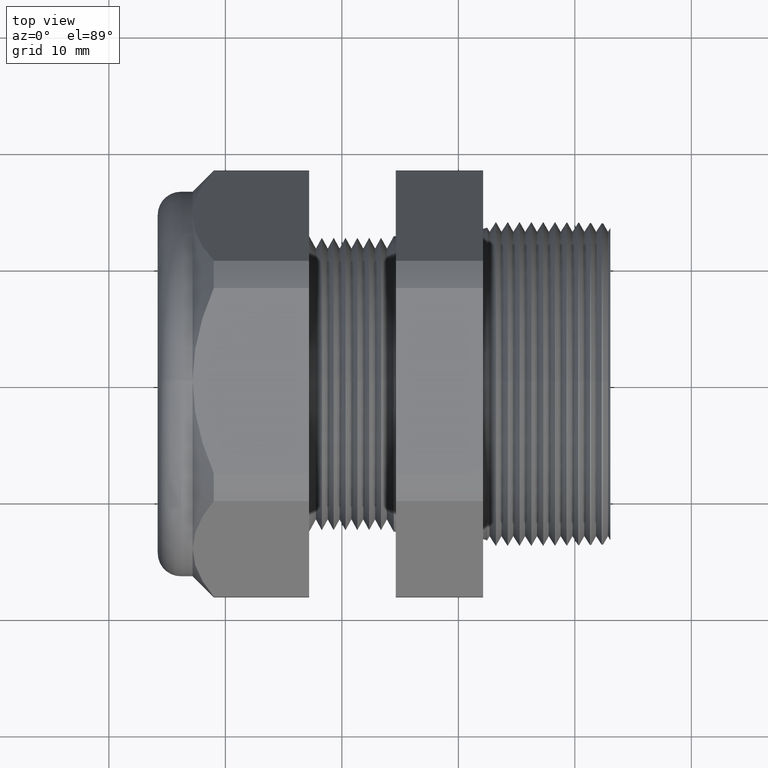
[diagram: clean part render]
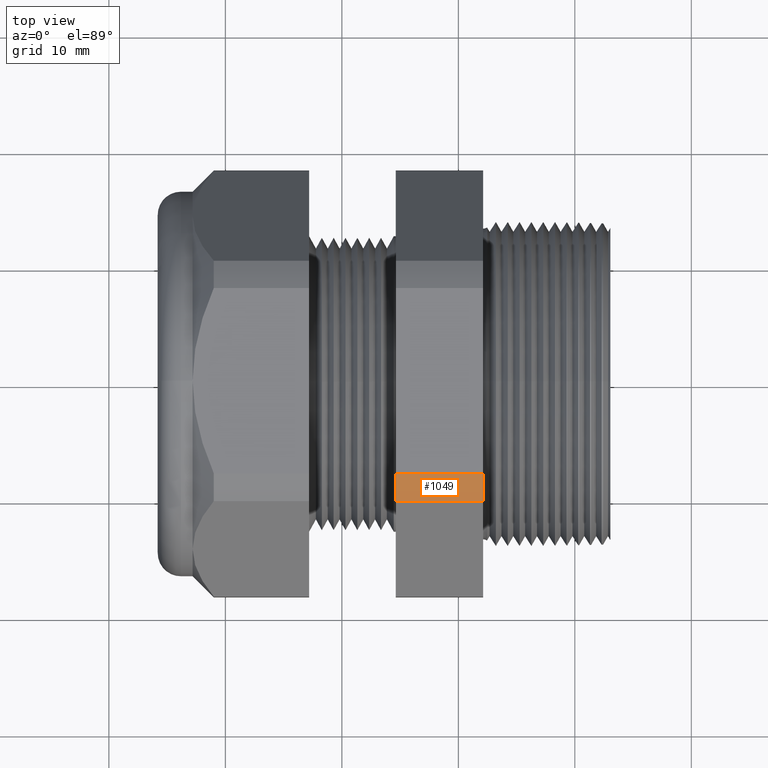
[diagram: same view with one face highlighted and labeled with its STEP entity id]
A machine part, top view. The second image highlights one B-rep face of the part: STEP entity #1049.
In plain terms, the highlighted cylindrical surface (partial cylindrical patch) has radius 18.3261 mm, axis along (-1, 0, 0).
Its self-contained STEP definition (entity closure, byte-faithful):
#297 = DIRECTION ( 'NONE',  ( 0.0000000000000000000, 0.0000000000000000000, -1.000000000000000000 ) ) ;
#298 = DIRECTION ( 'NONE',  ( 1.000000000000000000, 0.0000000000000000000, 0.0000000000000000000 ) ) ;
#299 = CARTESIAN_POINT ( 'NONE',  ( -0.3100000000000000000, 0.0000000000000000000, 0.0000000000000000000 ) ) ;
#300 = AXIS2_PLACEMENT_3D ( 'NONE', #299, #298, #297 ) ;
#301 = CIRCLE ( 'NONE', #300, 0.7215000000000000300 ) ;
#302 = CARTESIAN_POINT ( 'NONE',  ( -0.3100000000000000000, -0.3131489262315937400, 0.6500000000000000200 ) ) ;
#313 = CARTESIAN_POINT ( 'NONE',  ( -0.3100000000000000000, -0.4063420493440885700, 0.5961949252843791200 ) ) ;
#918 = EDGE_CURVE ( 'NONE', #1051, #1035, #1417, .T. ) ;
#984 = EDGE_CURVE ( 'NONE', #3714, #1051, #2044, .T. ) ;
#1035 = VERTEX_POINT ( 'NONE', #2093 ) ;
#1037 = EDGE_CURVE ( 'NONE', #3686, #1035, #2092, .T. ) ;
#1038 = ORIENTED_EDGE ( 'NONE', *, *, #1037, .T. ) ;
#1039 = ORIENTED_EDGE ( 'NONE', *, *, #918, .F. ) ;
#1043 = EDGE_LOOP ( 'NONE', ( #1044, #1045, #1038, #1039 ) ) ;
#1044 = ORIENTED_EDGE ( 'NONE', *, *, #984, .F. ) ;
#1045 = ORIENTED_EDGE ( 'NONE', *, *, #3688, .F. ) ;
#1049 = ADVANCED_FACE ( 'NONE', ( #2148 ), #2147, .T. ) ;
#1051 = VERTEX_POINT ( 'NONE', #2138 ) ;
#1413 = DIRECTION ( 'NONE',  ( 0.0000000000000000000, 0.0000000000000000000, 1.000000000000000000 ) ) ;
#1414 = DIRECTION ( 'NONE',  ( -1.000000000000000000, 0.0000000000000000000, 0.0000000000000000000 ) ) ;
#1415 = CARTESIAN_POINT ( 'NONE',  ( -0.6052755905511810800, 0.0000000000000000000, 0.0000000000000000000 ) ) ;
#1416 = AXIS2_PLACEMENT_3D ( 'NONE', #1415, #1414, #1413 ) ;
#1417 = CIRCLE ( 'NONE', #1416, 0.7215000000000000300 ) ;
#2037 = DIRECTION ( 'NONE',  ( -1.000000000000000000, 0.0000000000000000000, 0.0000000000000000000 ) ) ;
#2038 = VECTOR ( 'NONE', #2037, 39.37007874015748100 ) ;
#2039 = CARTESIAN_POINT ( 'NONE',  ( 0.1200000000000000900, -0.4063420493440885700, 0.5961949252843791200 ) ) ;
#2044 = LINE ( 'NONE', #2039, #2038 ) ;
#2092 = LINE ( 'NONE', #2156, #2155 ) ;
#2093 = CARTESIAN_POINT ( 'NONE',  ( -0.6052755905511810800, -0.3131489262315937400, 0.6500000000000000200 ) ) ;
#2138 = CARTESIAN_POINT ( 'NONE',  ( -0.6052755905511810800, -0.4063420493440885700, 0.5961949252843791200 ) ) ;
#2143 = DIRECTION ( 'NONE',  ( 0.0000000000000000000, 0.0000000000000000000, 1.000000000000000000 ) ) ;
#2144 = DIRECTION ( 'NONE',  ( -1.000000000000000000, 0.0000000000000000000, 0.0000000000000000000 ) ) ;
#2145 = CARTESIAN_POINT ( 'NONE',  ( 0.1200000000000000900, 0.0000000000000000000, 0.0000000000000000000 ) ) ;
#2146 = AXIS2_PLACEMENT_3D ( 'NONE', #2145, #2144, #2143 ) ;
#2147 = CYLINDRICAL_SURFACE ( 'NONE', #2146, 0.7215000000000000300 ) ;
#2148 = FACE_OUTER_BOUND ( 'NONE', #1043, .T. ) ;
#2154 = DIRECTION ( 'NONE',  ( -1.000000000000000000, 0.0000000000000000000, 0.0000000000000000000 ) ) ;
#2155 = VECTOR ( 'NONE', #2154, 39.37007874015748100 ) ;
#2156 = CARTESIAN_POINT ( 'NONE',  ( 0.1200000000000000900, -0.3131489262315937400, 0.6500000000000000200 ) ) ;
#3686 = VERTEX_POINT ( 'NONE', #302 ) ;
#3688 = EDGE_CURVE ( 'NONE', #3686, #3714, #301, .T. ) ;
#3714 = VERTEX_POINT ( 'NONE', #313 ) ;